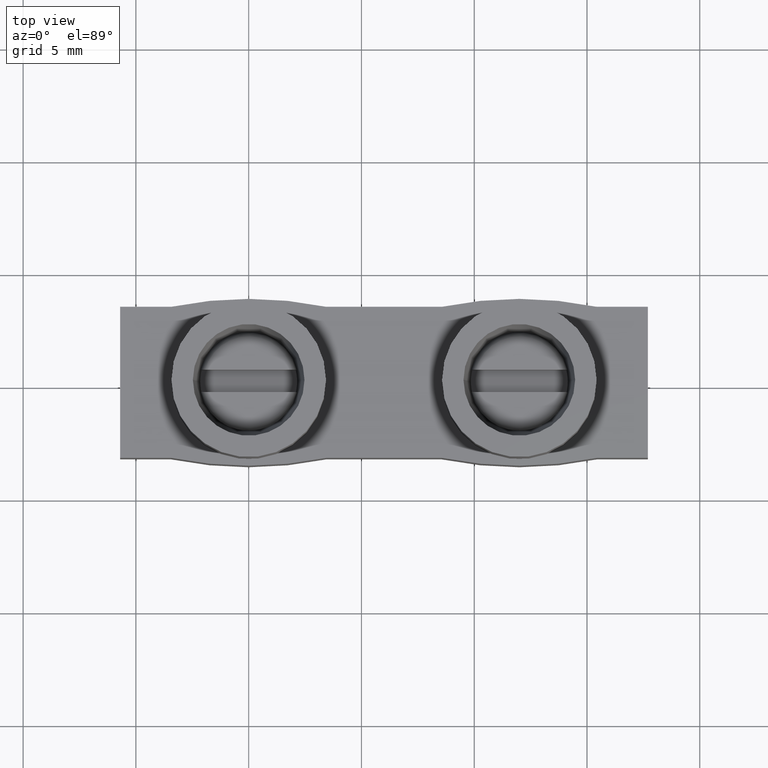
[diagram: clean part render]
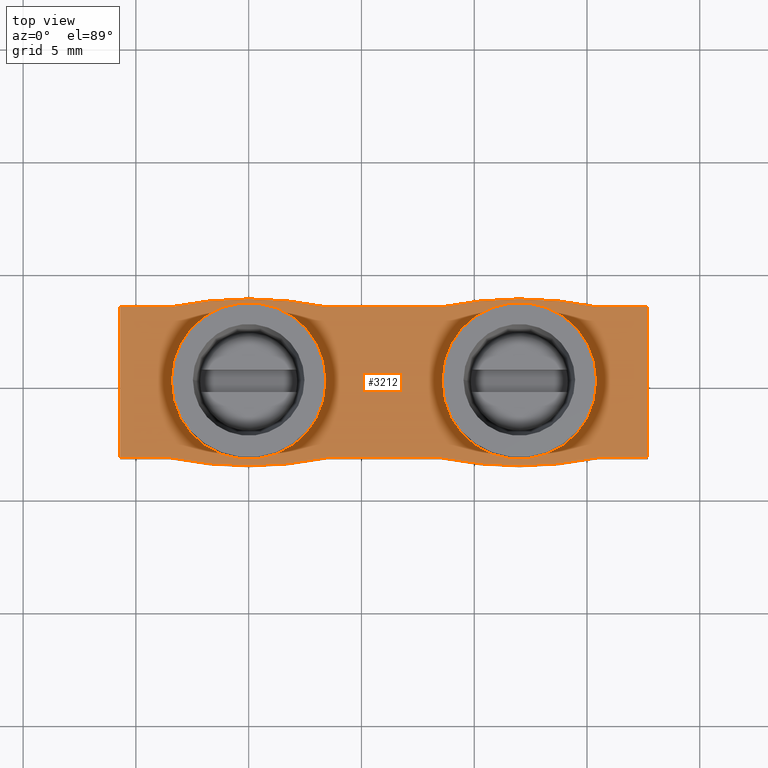
[diagram: same view with one face highlighted and labeled with its STEP entity id]
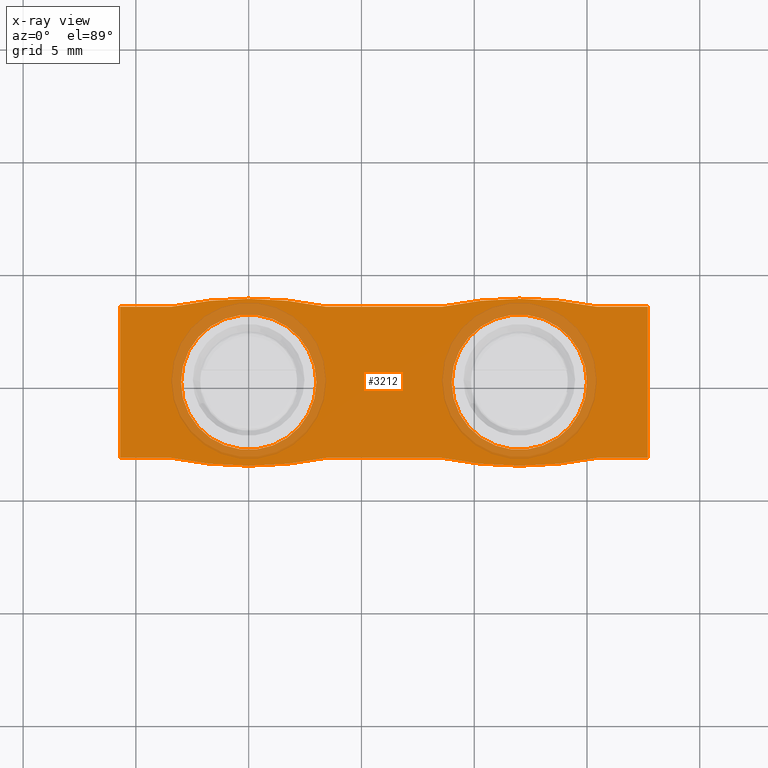
[diagram: x-ray of the same camera — body ghosted, the highlighted face saturated]
A machine part, top view. The second image highlights one B-rep face of the part: STEP entity #3212.
The next image is the same camera in x-ray: the body ghosted, the highlighted face saturated — about 16% of this face is hidden behind the body in this view.
In plain terms, the highlighted planar face has unit normal (0, 0, -1).
Its self-contained STEP definition (entity closure, byte-faithful):
#78 = CARTESIAN_POINT ( 'NONE',  ( 0.0000000000000000000, 0.0000000000000000000, -0.9000000000000014700 ) ) ;
#79 = DIRECTION ( 'NONE',  ( 0.0000000000000000000, 0.0000000000000000000, 1.000000000000000000 ) ) ;
#83 = DIRECTION ( 'NONE',  ( -1.000000000000000000, 0.0000000000000000000, 0.0000000000000000000 ) ) ;
#220 = CARTESIAN_POINT ( 'NONE',  ( 12.00000000000000000, 1.465963500825148300E-015, -0.9000000000000014700 ) ) ;
#224 = DIRECTION ( 'NONE',  ( 0.0000000000000000000, 0.0000000000000000000, 1.000000000000000000 ) ) ;
#237 = DIRECTION ( 'NONE',  ( -1.000000000000000000, 0.0000000000000000000, 0.0000000000000000000 ) ) ;
#477 = LINE ( 'NONE', #494, #2590 ) ;
#478 = CARTESIAN_POINT ( 'NONE',  ( 0.0000000000000000000, 0.0000000000000000000, -0.9000000000000014700 ) ) ;
#479 = DIRECTION ( 'NONE',  ( 0.0000000000000000000, 0.0000000000000000000, 1.000000000000000000 ) ) ;
#485 = DIRECTION ( 'NONE',  ( -1.000000000000000000, 0.0000000000000000000, 0.0000000000000000000 ) ) ;
#490 = DIRECTION ( 'NONE',  ( 1.000000000000000000, 1.245679091791856200E-016, -0.0000000000000000000 ) ) ;
#492 = LINE ( 'NONE', #510, #2597 ) ;
#494 = CARTESIAN_POINT ( 'NONE',  ( 16.15000000000000900, -3.349999999999913900, -0.9000000000000014700 ) ) ;
#499 = DIRECTION ( 'NONE',  ( -1.000000000000000000, -1.245679091791856200E-016, -0.0000000000000000000 ) ) ;
#510 = CARTESIAN_POINT ( 'NONE',  ( 16.15000000000000900, 3.350000000000087100, -0.9000000000000014700 ) ) ;
#527 = DIRECTION ( 'NONE',  ( 1.000000000000000000, 1.245679091791856200E-016, -0.0000000000000000000 ) ) ;
#529 = LINE ( 'NONE', #544, #2647 ) ;
#544 = CARTESIAN_POINT ( 'NONE',  ( 16.15000000000000900, -3.349999999999913900, -0.9000000000000014700 ) ) ;
#574 = CARTESIAN_POINT ( 'NONE',  ( 12.00000000000000400, -13.25000000000034300, -0.9000000000000014700 ) ) ;
#576 = DIRECTION ( 'NONE',  ( 1.000000000000000000, -3.582024876648227500E-015, 0.0000000000000000000 ) ) ;
#582 = DIRECTION ( 'NONE',  ( -0.0000000000000000000, -0.0000000000000000000, -1.000000000000000000 ) ) ;
#585 = DIRECTION ( 'NONE',  ( 0.0000000000000000000, 0.0000000000000000000, 1.000000000000000000 ) ) ;
#592 = CARTESIAN_POINT ( 'NONE',  ( 12.00000000000000000, 1.465963500825148300E-015, -0.9000000000000014700 ) ) ;
#595 = DIRECTION ( 'NONE',  ( -1.000000000000000000, 0.0000000000000000000, 0.0000000000000000000 ) ) ;
#604 = LINE ( 'NONE', #632, #2608 ) ;
#625 = DIRECTION ( 'NONE',  ( 1.000000000000000000, 1.245679091791856200E-016, -0.0000000000000000000 ) ) ;
#632 = CARTESIAN_POINT ( 'NONE',  ( 28.15000000000000900, -3.349999999999912600, -0.9000000000000014700 ) ) ;
#1400 = FACE_BOUND ( 'NONE', #1755, .T. ) ;
#1403 = PLANE ( 'NONE',  #2824 ) ;
#1425 = CARTESIAN_POINT ( 'NONE',  ( -77.85000000000005100, -3.349999999999924100, -0.9000000000000014700 ) ) ;
#1426 = FACE_BOUND ( 'NONE', #1832, .T. ) ;
#1430 = FACE_OUTER_BOUND ( 'NONE', #1757, .T. ) ;
#1431 = DIRECTION ( 'NONE',  ( 0.0000000000000000000, 0.0000000000000000000, -1.000000000000000000 ) ) ;
#1436 = DIRECTION ( 'NONE',  ( -1.000000000000000000, 0.0000000000000000000, -0.0000000000000000000 ) ) ;
#1510 = CARTESIAN_POINT ( 'NONE',  ( 16.15000000000000900, 3.350000000000087100, -0.9000000000000014700 ) ) ;
#1517 = LINE ( 'NONE', #1510, #2602 ) ;
#1521 = DIRECTION ( 'NONE',  ( -0.0000000000000000000, -0.0000000000000000000, -1.000000000000000000 ) ) ;
#1524 = DIRECTION ( 'NONE',  ( 1.000000000000000000, 0.0000000000000000000, 0.0000000000000000000 ) ) ;
#1532 = DIRECTION ( 'NONE',  ( -1.000000000000000000, -1.245679091791856200E-016, -0.0000000000000000000 ) ) ;
#1533 = CARTESIAN_POINT ( 'NONE',  ( 3.469446951953614200E-015, -13.25000000000034500, -0.9000000000000014700 ) ) ;
#1572 = DIRECTION ( 'NONE',  ( -1.000000000000000000, -1.245679091791856200E-016, -0.0000000000000000000 ) ) ;
#1586 = VERTEX_POINT ( 'NONE', #2369 ) ;
#1604 = VERTEX_POINT ( 'NONE', #2326 ) ;
#1605 = VERTEX_POINT ( 'NONE', #2327 ) ;
#1614 = VERTEX_POINT ( 'NONE', #2346 ) ;
#1667 = VERTEX_POINT ( 'NONE', #2407 ) ;
#1668 = VERTEX_POINT ( 'NONE', #2409 ) ;
#1692 = VERTEX_POINT ( 'NONE', #2443 ) ;
#1696 = VERTEX_POINT ( 'NONE', #2459 ) ;
#1701 = VERTEX_POINT ( 'NONE', #2473 ) ;
#1703 = VERTEX_POINT ( 'NONE', #2486 ) ;
#1708 = VERTEX_POINT ( 'NONE', #2479 ) ;
#1710 = VERTEX_POINT ( 'NONE', #2455 ) ;
#1721 = VERTEX_POINT ( 'NONE', #2463 ) ;
#1726 = VERTEX_POINT ( 'NONE', #2448 ) ;
#1735 = VERTEX_POINT ( 'NONE', #2464 ) ;
#1743 = VERTEX_POINT ( 'NONE', #2518 ) ;
#1755 = EDGE_LOOP ( 'NONE', ( #2166, #2153 ) ) ;
#1757 = EDGE_LOOP ( 'NONE', ( #2147, #2137, #2165, #2156, #2241, #2173, #2154, #2128, #2176, #2130, #2138, #2119 ) ) ;
#1832 = EDGE_LOOP ( 'NONE', ( #2148, #2140 ) ) ;
#2119 = ORIENTED_EDGE ( 'NONE', *, *, #3016, .T. ) ;
#2128 = ORIENTED_EDGE ( 'NONE', *, *, #3053, .T. ) ;
#2130 = ORIENTED_EDGE ( 'NONE', *, *, #2993, .T. ) ;
#2137 = ORIENTED_EDGE ( 'NONE', *, *, #3006, .T. ) ;
#2138 = ORIENTED_EDGE ( 'NONE', *, *, #3046, .F. ) ;
#2140 = ORIENTED_EDGE ( 'NONE', *, *, #3285, .F. ) ;
#2147 = ORIENTED_EDGE ( 'NONE', *, *, #2999, .F. ) ;
#2148 = ORIENTED_EDGE ( 'NONE', *, *, #3034, .F. ) ;
#2153 = ORIENTED_EDGE ( 'NONE', *, *, #3257, .F. ) ;
#2154 = ORIENTED_EDGE ( 'NONE', *, *, #2978, .F. ) ;
#2156 = ORIENTED_EDGE ( 'NONE', *, *, #3011, .T. ) ;
#2165 = ORIENTED_EDGE ( 'NONE', *, *, #2984, .T. ) ;
#2166 = ORIENTED_EDGE ( 'NONE', *, *, #3017, .F. ) ;
#2173 = ORIENTED_EDGE ( 'NONE', *, *, #3028, .T. ) ;
#2176 = ORIENTED_EDGE ( 'NONE', *, *, #2987, .T. ) ;
#2241 = ORIENTED_EDGE ( 'NONE', *, *, #2991, .F. ) ;
#2326 = CARTESIAN_POINT ( 'NONE',  ( 2.999999999999999100, 3.673940397442058900E-016, -0.9000000000000014700 ) ) ;
#2327 = CARTESIAN_POINT ( 'NONE',  ( 9.000000000000001800, 1.465963500825148300E-015, -0.9000000000000014700 ) ) ;
#2346 = CARTESIAN_POINT ( 'NONE',  ( -2.999999999999999100, 0.0000000000000000000, -0.9000000000000014700 ) ) ;
#2369 = CARTESIAN_POINT ( 'NONE',  ( 15.00000000000000000, 1.833357540569354400E-015, -0.9000000000000014700 ) ) ;
#2407 = CARTESIAN_POINT ( 'NONE',  ( 3.447100230629714700, -3.349999999999915700, -0.9000000000000014700 ) ) ;
#2409 = CARTESIAN_POINT ( 'NONE',  ( 15.42673313813508100, 3.350000000000086700, -0.9000000000000014700 ) ) ;
#2443 = CARTESIAN_POINT ( 'NONE',  ( 15.44710023062971500, -3.349999999999914400, -0.9000000000000014700 ) ) ;
#2448 = CARTESIAN_POINT ( 'NONE',  ( -5.700000000000000200, 3.350000000000084500, -0.9000000000000014700 ) ) ;
#2455 = CARTESIAN_POINT ( 'NONE',  ( 8.552899769370297300, -3.349999999999914800, -0.9000000000000014700 ) ) ;
#2459 = CARTESIAN_POINT ( 'NONE',  ( -3.426733138135080300, 3.350000000000084500, -0.9000000000000014700 ) ) ;
#2463 = CARTESIAN_POINT ( 'NONE',  ( 17.69999999999921800, -3.349999999999913900, -0.9000000000000014700 ) ) ;
#2464 = CARTESIAN_POINT ( 'NONE',  ( 8.573266861864922800, 3.350000000000086200, -0.9000000000000014700 ) ) ;
#2473 = CARTESIAN_POINT ( 'NONE',  ( -3.447100230629700900, -3.349999999999916600, -0.9000000000000014700 ) ) ;
#2479 = CARTESIAN_POINT ( 'NONE',  ( -5.699999999999996600, -3.349999999999916600, -0.9000000000000014700 ) ) ;
#2486 = CARTESIAN_POINT ( 'NONE',  ( 17.69999999999921800, 3.350000000000087100, -0.9000000000000014700 ) ) ;
#2492 = CARTESIAN_POINT ( 'NONE',  ( 12.00000000000000400, 13.45000000000008600, -0.9000000000000014700 ) ) ;
#2496 = DIRECTION ( 'NONE',  ( 0.0000000000000000000, 0.0000000000000000000, -1.000000000000000000 ) ) ;
#2497 = LINE ( 'NONE', #2524, #2556 ) ;
#2498 = LINE ( 'NONE', #2501, #2562 ) ;
#2501 = CARTESIAN_POINT ( 'NONE',  ( 17.69999999999921800, -3.349999999999924100, -0.9000000000000014700 ) ) ;
#2503 = DIRECTION ( 'NONE',  ( 0.0000000000000000000, 1.000000000000000000, 0.0000000000000000000 ) ) ;
#2515 = DIRECTION ( 'NONE',  ( -1.000000000000000000, 0.0000000000000000000, 0.0000000000000000000 ) ) ;
#2518 = CARTESIAN_POINT ( 'NONE',  ( 3.426733138135080300, 3.350000000000085400, -0.9000000000000014700 ) ) ;
#2524 = CARTESIAN_POINT ( 'NONE',  ( -5.699999999999996600, -3.349999999999909900, -0.9000000000000014700 ) ) ;
#2525 = DIRECTION ( 'NONE',  ( 2.009125974575783600E-016, -1.000000000000000000, 0.0000000000000000000 ) ) ;
#2532 = LINE ( 'NONE', #2534, #2585 ) ;
#2534 = CARTESIAN_POINT ( 'NONE',  ( 28.15000000000000900, 3.350000000000088500, -0.9000000000000014700 ) ) ;
#2535 = CARTESIAN_POINT ( 'NONE',  ( 3.469446951953614200E-015, 13.45000000000008500, -0.9000000000000014700 ) ) ;
#2536 = DIRECTION ( 'NONE',  ( -1.000000000000000000, 0.0000000000000000000, 0.0000000000000000000 ) ) ;
#2537 = DIRECTION ( 'NONE',  ( 0.0000000000000000000, 0.0000000000000000000, -1.000000000000000000 ) ) ;
#2544 = AXIS2_PLACEMENT_3D ( 'NONE', #2492, #2496, #2515 ) ;
#2546 = CIRCLE ( 'NONE', #2544, 17.15000000000021900 ) ;
#2556 = VECTOR ( 'NONE', #2525, 1000.000000000000000 ) ;
#2557 = AXIS2_PLACEMENT_3D ( 'NONE', #2535, #2537, #2536 ) ;
#2562 = VECTOR ( 'NONE', #2503, 1000.000000000000000 ) ;
#2563 = CIRCLE ( 'NONE', #2557, 17.15000000000021900 ) ;
#2565 = CIRCLE ( 'NONE', #2586, 16.95000000000022000 ) ;
#2579 = CIRCLE ( 'NONE', #2580, 2.999999999999999100 ) ;
#2580 = AXIS2_PLACEMENT_3D ( 'NONE', #478, #479, #485 ) ;
#2585 = VECTOR ( 'NONE', #1572, 1000.000000000000000 ) ;
#2586 = AXIS2_PLACEMENT_3D ( 'NONE', #1533, #1521, #1524 ) ;
#2590 = VECTOR ( 'NONE', #490, 1000.000000000000000 ) ;
#2597 = VECTOR ( 'NONE', #499, 1000.000000000000000 ) ;
#2602 = VECTOR ( 'NONE', #1532, 1000.000000000000000 ) ;
#2608 = VECTOR ( 'NONE', #625, 1000.000000000000000 ) ;
#2632 = AXIS2_PLACEMENT_3D ( 'NONE', #574, #582, #576 ) ;
#2634 = AXIS2_PLACEMENT_3D ( 'NONE', #592, #585, #595 ) ;
#2640 = CIRCLE ( 'NONE', #2634, 2.999999999999999100 ) ;
#2646 = CIRCLE ( 'NONE', #2632, 16.95000000000022000 ) ;
#2647 = VECTOR ( 'NONE', #527, 1000.000000000000000 ) ;
#2824 = AXIS2_PLACEMENT_3D ( 'NONE', #1425, #1431, #1436 ) ;
#2867 = CIRCLE ( 'NONE', #2896, 2.999999999999999100 ) ;
#2888 = CIRCLE ( 'NONE', #2890, 2.999999999999999100 ) ;
#2890 = AXIS2_PLACEMENT_3D ( 'NONE', #78, #79, #83 ) ;
#2896 = AXIS2_PLACEMENT_3D ( 'NONE', #220, #224, #237 ) ;
#2978 = EDGE_CURVE ( 'NONE', #1692, #1710, #2546, .T. ) ;
#2984 = EDGE_CURVE ( 'NONE', #1726, #1708, #2497, .T. ) ;
#2987 = EDGE_CURVE ( 'NONE', #1721, #1703, #2498, .T. ) ;
#2991 = EDGE_CURVE ( 'NONE', #1667, #1701, #2563, .T. ) ;
#2993 = EDGE_CURVE ( 'NONE', #1703, #1668, #2532, .T. ) ;
#2999 = EDGE_CURVE ( 'NONE', #1696, #1743, #2565, .T. ) ;
#3006 = EDGE_CURVE ( 'NONE', #1696, #1726, #1517, .T. ) ;
#3011 = EDGE_CURVE ( 'NONE', #1708, #1701, #477, .T. ) ;
#3016 = EDGE_CURVE ( 'NONE', #1735, #1743, #492, .T. ) ;
#3017 = EDGE_CURVE ( 'NONE', #1614, #1604, #2579, .T. ) ;
#3028 = EDGE_CURVE ( 'NONE', #1667, #1710, #529, .T. ) ;
#3034 = EDGE_CURVE ( 'NONE', #1605, #1586, #2640, .T. ) ;
#3046 = EDGE_CURVE ( 'NONE', #1735, #1668, #2646, .T. ) ;
#3053 = EDGE_CURVE ( 'NONE', #1692, #1721, #604, .T. ) ;
#3212 = ADVANCED_FACE ( 'NONE', ( #1400, #1430, #1426 ), #1403, .F. ) ;
#3257 = EDGE_CURVE ( 'NONE', #1604, #1614, #2888, .T. ) ;
#3285 = EDGE_CURVE ( 'NONE', #1586, #1605, #2867, .T. ) ;